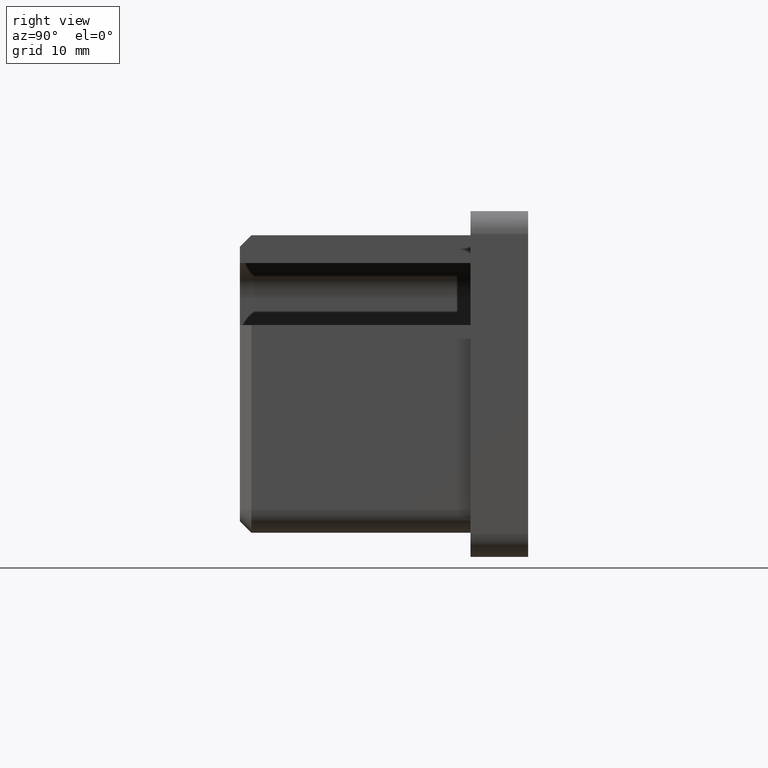
[diagram: clean part render]
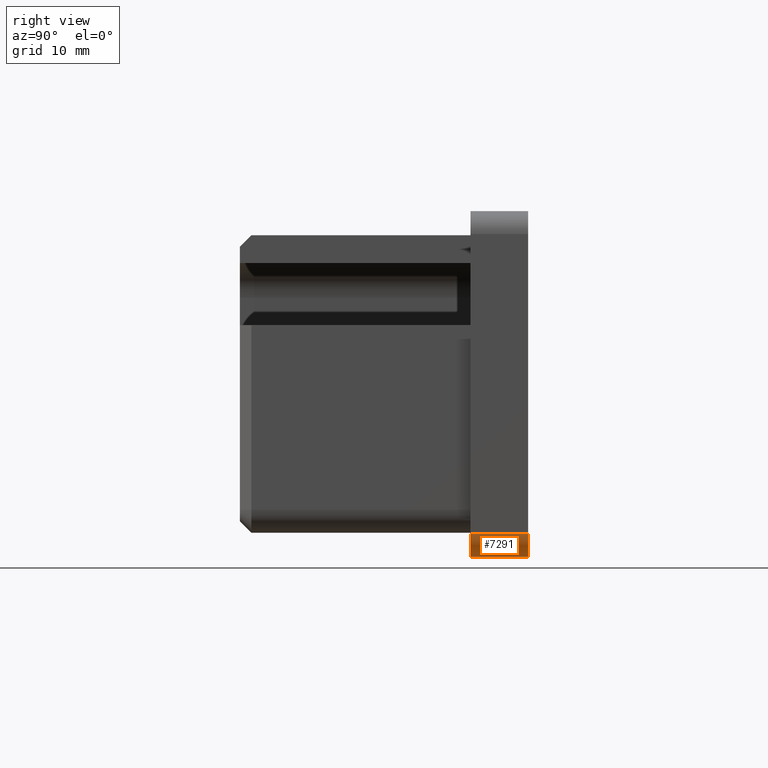
[diagram: same view with one face highlighted and labeled with its STEP entity id]
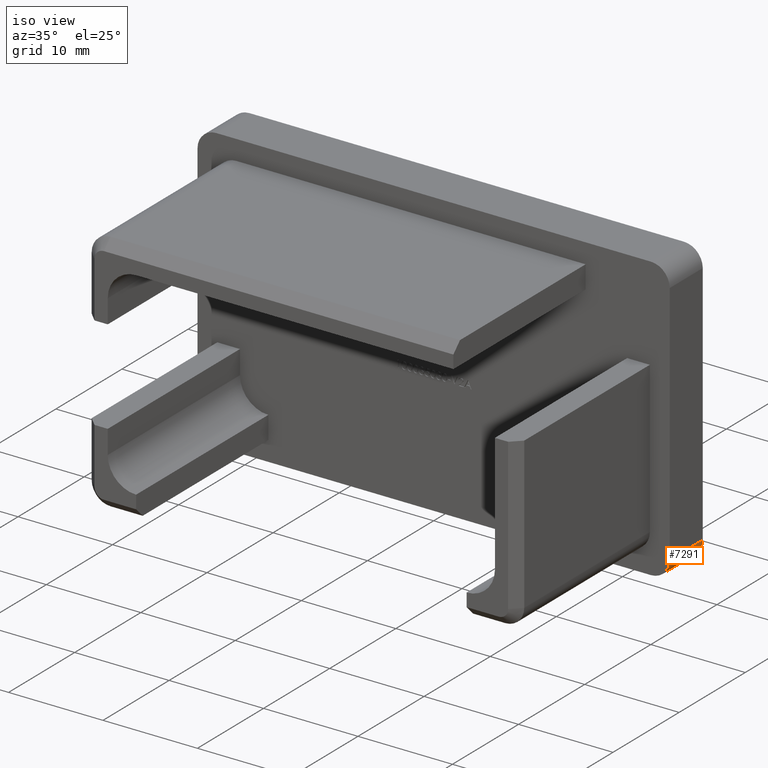
[diagram: same view with one face highlighted and labeled with its STEP entity id]
A machine part, right view. The second image highlights one B-rep face of the part: STEP entity #7291.
A second angle (iso view) of the same face is appended — the face is thin or edge-on in the first view.
In plain terms, the highlighted cylindrical surface (edge-blend (fillet) strip) has radius 2 mm, axis along (0, -1, 0).
Its self-contained STEP definition (entity closure, byte-faithful):
#75 = CARTESIAN_POINT ( 'NONE',  ( 23.00000000000000000, 0.000000000000000000, -12.99999999999999822 ) ) ;
#83 = VECTOR ( 'NONE', #13511, 1000.000000000000000 ) ;
#249 = EDGE_CURVE ( 'NONE', #16783, #15752, #4339, .T. ) ;
#1068 = DIRECTION ( 'NONE',  ( 0.000000000000000000, -1.000000000000000000, 0.000000000000000000 ) ) ;
#1368 = VERTEX_POINT ( 'NONE', #2920 ) ;
#1442 = DIRECTION ( 'NONE',  ( -0.000000000000000000, -1.000000000000000000, -0.000000000000000000 ) ) ;
#2604 = CARTESIAN_POINT ( 'NONE',  ( 23.00000000000000000, 5.000000000000000000, -12.99999999999999822 ) ) ;
#2780 = ORIENTED_EDGE ( 'NONE', *, *, #6818, .F. ) ;
#2920 = CARTESIAN_POINT ( 'NONE',  ( 23.00000000000000000, 0.000000000000000000, -14.99999999999999822 ) ) ;
#3636 = EDGE_LOOP ( 'NONE', ( #5029, #8404, #2780, #16981 ) ) ;
#3787 = CIRCLE ( 'NONE', #11218, 2.000000000000000000 ) ;
#4339 = LINE ( 'NONE', #16319, #83 ) ;
#5029 = ORIENTED_EDGE ( 'NONE', *, *, #10373, .F. ) ;
#5145 = VECTOR ( 'NONE', #1068, 1000.000000000000000 ) ;
#6701 = AXIS2_PLACEMENT_3D ( 'NONE', #17515, #9284, #8284 ) ;
#6818 = EDGE_CURVE ( 'NONE', #1368, #16783, #3787, .T. ) ;
#6954 = DIRECTION ( 'NONE',  ( 0.000000000000000000, 0.000000000000000000, 1.000000000000000000 ) ) ;
#7291 = ADVANCED_FACE ( 'NONE', ( #17129 ), #11823, .T. ) ;
#8179 = CIRCLE ( 'NONE', #11120, 2.000000000000000000 ) ;
#8250 = CARTESIAN_POINT ( 'NONE',  ( 24.99999999999999645, 5.000000000000000000, -12.99999999999999822 ) ) ;
#8284 = DIRECTION ( 'NONE',  ( 0.000000000000000000, 0.000000000000000000, -1.000000000000000000 ) ) ;
#8310 = LINE ( 'NONE', #16718, #5145 ) ;
#8404 = ORIENTED_EDGE ( 'NONE', *, *, #249, .F. ) ;
#9074 = CARTESIAN_POINT ( 'NONE',  ( 24.99999999999999645, 0.000000000000000000, -12.99999999999999822 ) ) ;
#9165 = CARTESIAN_POINT ( 'NONE',  ( 23.00000000000000000, 5.000000000000000000, -14.99999999999999822 ) ) ;
#9284 = DIRECTION ( 'NONE',  ( 0.000000000000000000, -1.000000000000000000, 0.000000000000000000 ) ) ;
#9861 = VERTEX_POINT ( 'NONE', #9165 ) ;
#10373 = EDGE_CURVE ( 'NONE', #15752, #9861, #8179, .T. ) ;
#10617 = DIRECTION ( 'NONE',  ( 0.000000000000000000, 0.000000000000000000, 1.000000000000000000 ) ) ;
#10678 = DIRECTION ( 'NONE',  ( 0.000000000000000000, 1.000000000000000000, 0.000000000000000000 ) ) ;
#11120 = AXIS2_PLACEMENT_3D ( 'NONE', #2604, #10678, #10617 ) ;
#11218 = AXIS2_PLACEMENT_3D ( 'NONE', #75, #1442, #6954 ) ;
#11823 = CYLINDRICAL_SURFACE ( 'NONE', #6701, 2.000000000000000000 ) ;
#13511 = DIRECTION ( 'NONE',  ( -0.000000000000000000, 1.000000000000000000, -0.000000000000000000 ) ) ;
#14702 = EDGE_CURVE ( 'NONE', #9861, #1368, #8310, .T. ) ;
#15752 = VERTEX_POINT ( 'NONE', #8250 ) ;
#16319 = CARTESIAN_POINT ( 'NONE',  ( 24.99999999999999645, 5.000000000000000000, -12.99999999999999822 ) ) ;
#16718 = CARTESIAN_POINT ( 'NONE',  ( 23.00000000000000000, 5.000000000000000000, -14.99999999999999822 ) ) ;
#16783 = VERTEX_POINT ( 'NONE', #9074 ) ;
#16981 = ORIENTED_EDGE ( 'NONE', *, *, #14702, .F. ) ;
#17129 = FACE_OUTER_BOUND ( 'NONE', #3636, .T. ) ;
#17515 = CARTESIAN_POINT ( 'NONE',  ( 23.00000000000000000, 5.000000000000000000, -12.99999999999999822 ) ) ;